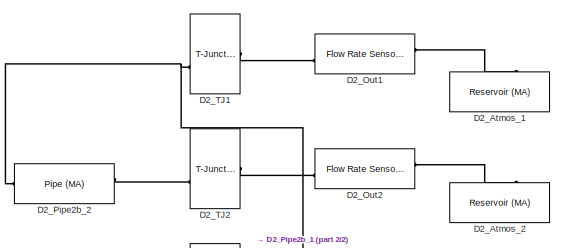
[diagram: root canvas - part 1/2, top center region]
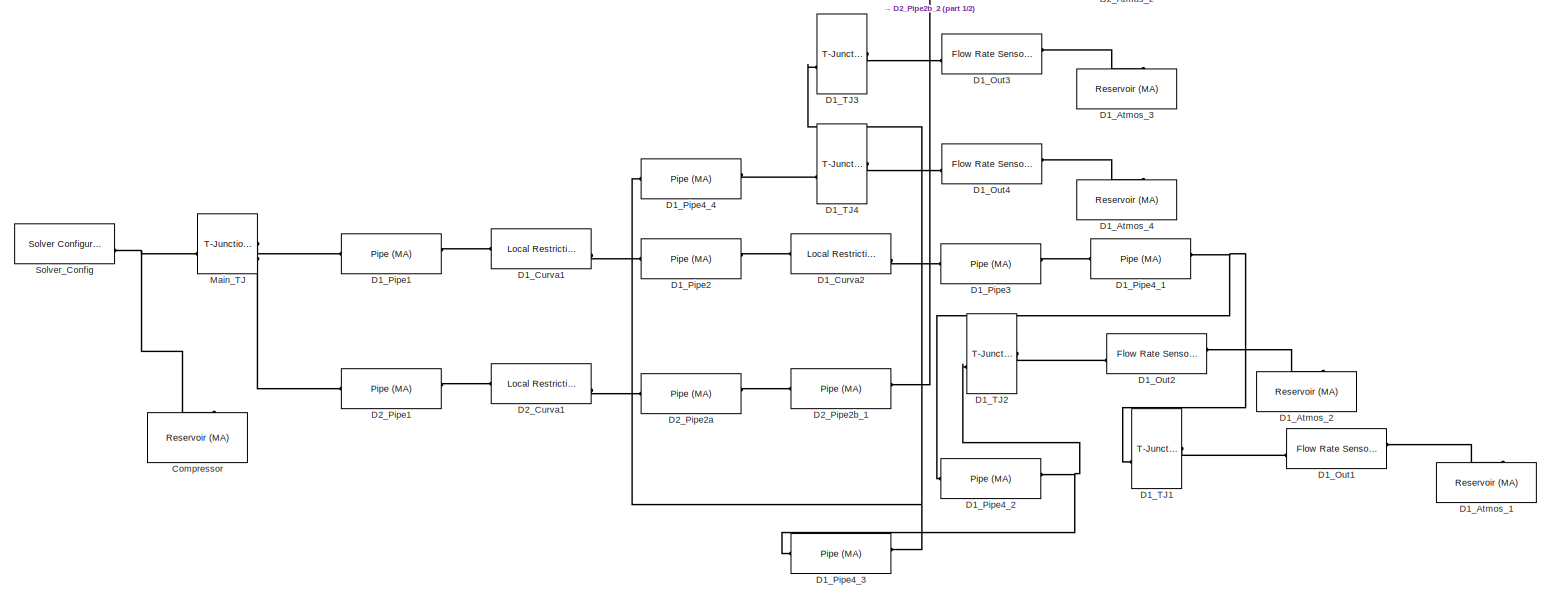
[diagram: root canvas - part 2/2, full width, middle band]
MODEL slx_82a2f92dda55
KIND model
CONFIG AbsTol = auto
CONFIG EnableMultiTasking = off
CONFIG FixedStep = auto
CONFIG MaxStep = auto
CONFIG MinStep = auto
CONFIG RelTol = 1e-3
CONFIG SampleTimeConstraint = Unconstrained
CONFIG SolverName = VariableStepAuto
CONFIG StartTime = 0.0
CONFIG StopTime = 10.0
BLOCK [Reference] Compressor  REF=fl_lib/Moist Air/Elements/Reservoir (MA)
  NameLocation = right
  SourceBlock = fl_lib/Moist Air/Elements/Reservoir (MA)
  SourceType = Reservoir (MA)
BLOCK [Reference] D1_Atmos_1  REF=fl_lib/Moist Air/Elements/Reservoir (MA)
  NameLocation = right
  SourceBlock = fl_lib/Moist Air/Elements/Reservoir (MA)
  SourceType = Reservoir (MA)
BLOCK [Reference] D1_Atmos_2  REF=fl_lib/Moist Air/Elements/Reservoir (MA)
  NameLocation = right
  SourceBlock = fl_lib/Moist Air/Elements/Reservoir (MA)
  SourceType = Reservoir (MA)
BLOCK [Reference] D1_Atmos_3  REF=fl_lib/Moist Air/Elements/Reservoir (MA)
  NameLocation = right
  SourceBlock = fl_lib/Moist Air/Elements/Reservoir (MA)
  SourceType = Reservoir (MA)
BLOCK [Reference] D1_Atmos_4  REF=fl_lib/Moist Air/Elements/Reservoir (MA)
  NameLocation = right
  SourceBlock = fl_lib/Moist Air/Elements/Reservoir (MA)
  SourceType = Reservoir (MA)
BLOCK [Reference] D1_Curva1  REF=fl_lib/Moist Air/Elements/Local Restriction
(MA)
  SourceBlock = fl_lib/Moist Air/Elements/Local Restriction\n(MA)
  SourceType = Local Restriction\n(MA)
BLOCK [Reference] D1_Curva2  REF=fl_lib/Moist Air/Elements/Local Restriction
(MA)
  SourceBlock = fl_lib/Moist Air/Elements/Local Restriction\n(MA)
  SourceType = Local Restriction\n(MA)
BLOCK [Reference] D1_Out1  REF=fl_lib/Moist Air/Sensors/Flow Rate Sensor
(MA)
  SourceBlock = fl_lib/Moist Air/Sensors/Flow Rate Sensor\n(MA)
  SourceType = Flow Rate Sensor\n(MA)
BLOCK [Reference] D1_Out2  REF=fl_lib/Moist Air/Sensors/Flow Rate Sensor
(MA)
  SourceBlock = fl_lib/Moist Air/Sensors/Flow Rate Sensor\n(MA)
  SourceType = Flow Rate Sensor\n(MA)
BLOCK [Reference] D1_Out3  REF=fl_lib/Moist Air/Sensors/Flow Rate Sensor
(MA)
  SourceBlock = fl_lib/Moist Air/Sensors/Flow Rate Sensor\n(MA)
  SourceType = Flow Rate Sensor\n(MA)
BLOCK [Reference] D1_Out4  REF=fl_lib/Moist Air/Sensors/Flow Rate Sensor
(MA)
  SourceBlock = fl_lib/Moist Air/Sensors/Flow Rate Sensor\n(MA)
  SourceType = Flow Rate Sensor\n(MA)
BLOCK [Reference] D1_Pipe1  REF=fl_lib/Moist Air/Elements/Pipe (MA)
  SourceBlock = fl_lib/Moist Air/Elements/Pipe (MA)
  SourceType = Pipe (MA)
BLOCK [Reference] D1_Pipe2  REF=fl_lib/Moist Air/Elements/Pipe (MA)
  SourceBlock = fl_lib/Moist Air/Elements/Pipe (MA)
  SourceType = Pipe (MA)
BLOCK [Reference] D1_Pipe3  REF=fl_lib/Moist Air/Elements/Pipe (MA)
  SourceBlock = fl_lib/Moist Air/Elements/Pipe (MA)
  SourceType = Pipe (MA)
BLOCK [Reference] D1_Pipe4_1  REF=fl_lib/Moist Air/Elements/Pipe (MA)
  SourceBlock = fl_lib/Moist Air/Elements/Pipe (MA)
  SourceType = Pipe (MA)
BLOCK [Reference] D1_Pipe4_2  REF=fl_lib/Moist Air/Elements/Pipe (MA)
  SourceBlock = fl_lib/Moist Air/Elements/Pipe (MA)
  SourceType = Pipe (MA)
BLOCK [Reference] D1_Pipe4_3  REF=fl_lib/Moist Air/Elements/Pipe (MA)
  SourceBlock = fl_lib/Moist Air/Elements/Pipe (MA)
  SourceType = Pipe (MA)
BLOCK [Reference] D1_Pipe4_4  REF=fl_lib/Moist Air/Elements/Pipe (MA)
  SourceBlock = fl_lib/Moist Air/Elements/Pipe (MA)
  SourceType = Pipe (MA)
BLOCK [Reference] D1_TJ1  REF=SimscapeFluids_lib/Moist Air/Pipes & Fittings/T-Junction (MA)
  SourceBlock = SimscapeFluids_lib/Moist Air/Pipes & Fittings/T-Junction (MA)
  SourceType = T-Junction (MA)
BLOCK [Reference] D1_TJ2  REF=SimscapeFluids_lib/Moist Air/Pipes & Fittings/T-Junction (MA)
  SourceBlock = SimscapeFluids_lib/Moist Air/Pipes & Fittings/T-Junction (MA)
  SourceType = T-Junction (MA)
BLOCK [Reference] D1_TJ3  REF=SimscapeFluids_lib/Moist Air/Pipes & Fittings/T-Junction (MA)
  SourceBlock = SimscapeFluids_lib/Moist Air/Pipes & Fittings/T-Junction (MA)
  SourceType = T-Junction (MA)
BLOCK [Reference] D1_TJ4  REF=SimscapeFluids_lib/Moist Air/Pipes & Fittings/T-Junction (MA)
  SourceBlock = SimscapeFluids_lib/Moist Air/Pipes & Fittings/T-Junction (MA)
  SourceType = T-Junction (MA)
BLOCK [Reference] D2_Atmos_1  REF=fl_lib/Moist Air/Elements/Reservoir (MA)
  NameLocation = right
  SourceBlock = fl_lib/Moist Air/Elements/Reservoir (MA)
  SourceType = Reservoir (MA)
BLOCK [Reference] D2_Atmos_2  REF=fl_lib/Moist Air/Elements/Reservoir (MA)
  NameLocation = right
  SourceBlock = fl_lib/Moist Air/Elements/Reservoir (MA)
  SourceType = Reservoir (MA)
BLOCK [Reference] D2_Curva1  REF=fl_lib/Moist Air/Elements/Local Restriction
(MA)
  SourceBlock = fl_lib/Moist Air/Elements/Local Restriction\n(MA)
  SourceType = Local Restriction\n(MA)
BLOCK [Reference] D2_Out1  REF=fl_lib/Moist Air/Sensors/Flow Rate Sensor
(MA)
  SourceBlock = fl_lib/Moist Air/Sensors/Flow Rate Sensor\n(MA)
  SourceType = Flow Rate Sensor\n(MA)
BLOCK [Reference] D2_Out2  REF=fl_lib/Moist Air/Sensors/Flow Rate Sensor
(MA)
  SourceBlock = fl_lib/Moist Air/Sensors/Flow Rate Sensor\n(MA)
  SourceType = Flow Rate Sensor\n(MA)
BLOCK [Reference] D2_Pipe1  REF=fl_lib/Moist Air/Elements/Pipe (MA)
  SourceBlock = fl_lib/Moist Air/Elements/Pipe (MA)
  SourceType = Pipe (MA)
BLOCK [Reference] D2_Pipe2a  REF=fl_lib/Moist Air/Elements/Pipe (MA)
  SourceBlock = fl_lib/Moist Air/Elements/Pipe (MA)
  SourceType = Pipe (MA)
BLOCK [Reference] D2_Pipe2b_1  REF=fl_lib/Moist Air/Elements/Pipe (MA)
  SourceBlock = fl_lib/Moist Air/Elements/Pipe (MA)
  SourceType = Pipe (MA)
BLOCK [Reference] D2_Pipe2b_2  REF=fl_lib/Moist Air/Elements/Pipe (MA)
  SourceBlock = fl_lib/Moist Air/Elements/Pipe (MA)
  SourceType = Pipe (MA)
BLOCK [Reference] D2_TJ1  REF=SimscapeFluids_lib/Moist Air/Pipes & Fittings/T-Junction (MA)
  SourceBlock = SimscapeFluids_lib/Moist Air/Pipes & Fittings/T-Junction (MA)
  SourceType = T-Junction (MA)
BLOCK [Reference] D2_TJ2  REF=SimscapeFluids_lib/Moist Air/Pipes & Fittings/T-Junction (MA)
  SourceBlock = SimscapeFluids_lib/Moist Air/Pipes & Fittings/T-Junction (MA)
  SourceType = T-Junction (MA)
BLOCK [Reference] Main_TJ  REF=SimscapeFluids_lib/Moist Air/Pipes & Fittings/T-Junction (MA)
  SourceBlock = SimscapeFluids_lib/Moist Air/Pipes & Fittings/T-Junction (MA)
  SourceType = T-Junction (MA)
BLOCK [Reference] Solver_Config  REF=nesl_utility/Solver
Configuration
  SourceBlock = nesl_utility/Solver\nConfiguration
  SourceType = Solver\nConfiguration
PNET net1: Compressor:LConn1 -- Main_TJ:LConn1 -- Solver_Config:RConn1
PLINE D1_Atmos_1:LConn1 -- D1_Out1:RConn1
PLINE D1_Atmos_2:LConn1 -- D1_Out2:RConn1
PLINE D1_Atmos_3:LConn1 -- D1_Out3:RConn1
PLINE D1_Atmos_4:LConn1 -- D1_Out4:RConn1
PLINE D1_Curva1:LConn1 -- D1_Pipe1:RConn1
PLINE D1_Curva1:RConn1 -- D1_Pipe2:LConn1
PLINE D1_Curva2:LConn1 -- D1_Pipe2:RConn1
PLINE D1_Curva2:RConn1 -- D1_Pipe3:LConn1
PLINE D1_Out1:LConn1 -- D1_TJ1:RConn1
PLINE D1_Out2:LConn1 -- D1_TJ2:RConn1
PLINE D1_Out3:LConn1 -- D1_TJ3:RConn1
PLINE D1_Out4:LConn1 -- D1_TJ4:RConn1
PLINE D1_Pipe1:LConn1 -- Main_TJ:RConn1
PLINE D1_Pipe3:RConn1 -- D1_Pipe4_1:LConn1
PNET net2: D1_Pipe4_1:RConn1 -- D1_Pipe4_2:LConn1 -- D1_TJ1:LConn1
PNET net3: D1_Pipe4_2:RConn1 -- D1_Pipe4_3:LConn1 -- D1_TJ2:LConn1
PNET net4: D1_Pipe4_3:RConn1 -- D1_Pipe4_4:LConn1 -- D1_TJ3:LConn1
PLINE D1_Pipe4_4:RConn1 -- D1_TJ4:LConn1
PLINE D2_Atmos_1:LConn1 -- D2_Out1:RConn1
PLINE D2_Atmos_2:LConn1 -- D2_Out2:RConn1
PLINE D2_Curva1:LConn1 -- D2_Pipe1:RConn1
PLINE D2_Curva1:RConn1 -- D2_Pipe2a:LConn1
PLINE D2_Out1:LConn1 -- D2_TJ1:RConn1
PLINE D2_Out2:LConn1 -- D2_TJ2:RConn1
PLINE D2_Pipe1:LConn1 -- Main_TJ:RConn2
PLINE D2_Pipe2a:RConn1 -- D2_Pipe2b_1:LConn1
PNET net5: D2_Pipe2b_1:RConn1 -- D2_Pipe2b_2:LConn1 -- D2_TJ1:LConn1
PLINE D2_Pipe2b_2:RConn1 -- D2_TJ2:LConn1
note: PNET lines group multi-terminal physical nets as a canonical sorted terminal list (undirected conserving connections); 2-terminal nets keep the pairwise PLINE form
